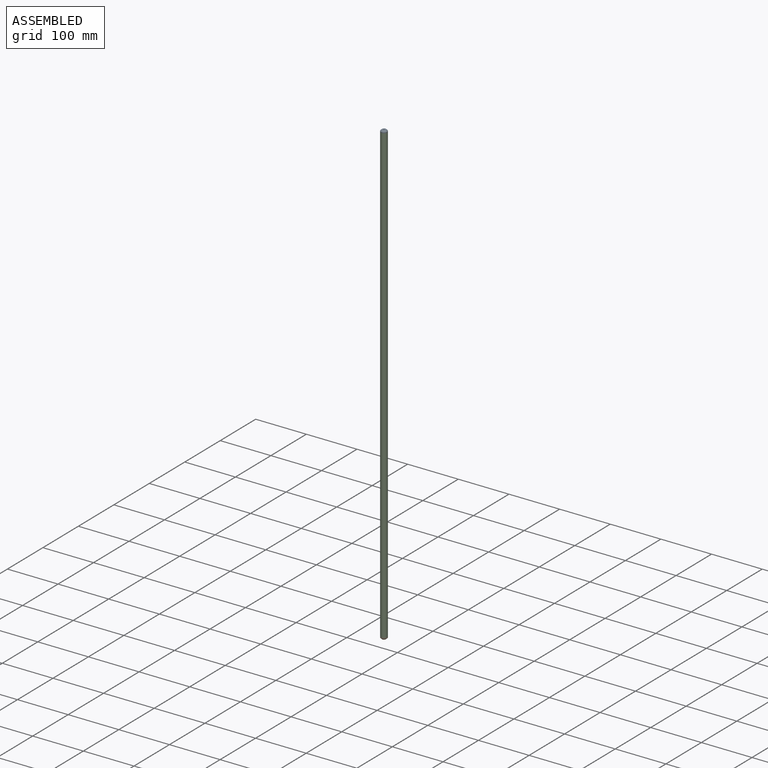
[diagram: assembled view]
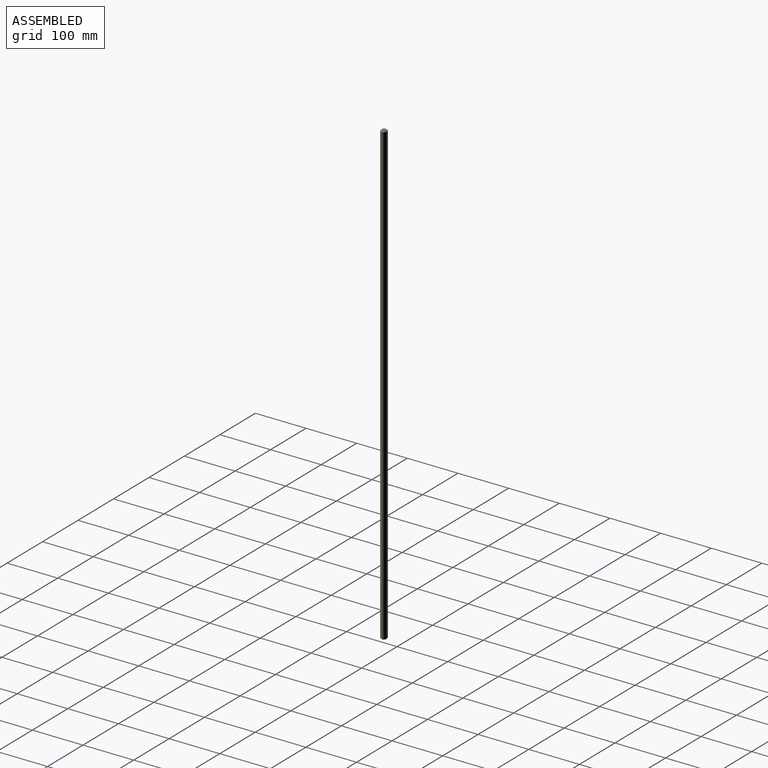
[diagram: assembled view, second angle]
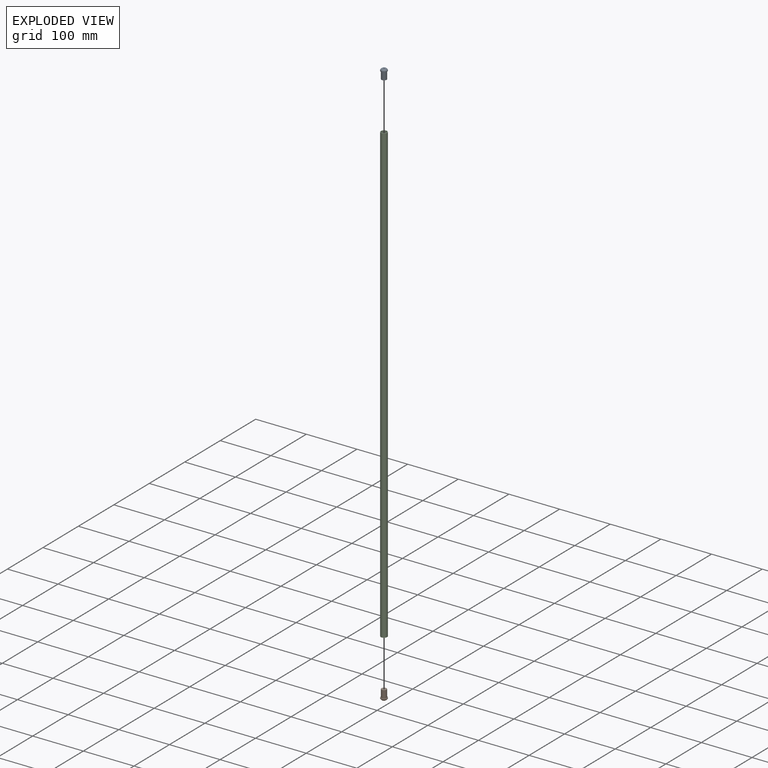
[diagram: exploded view]
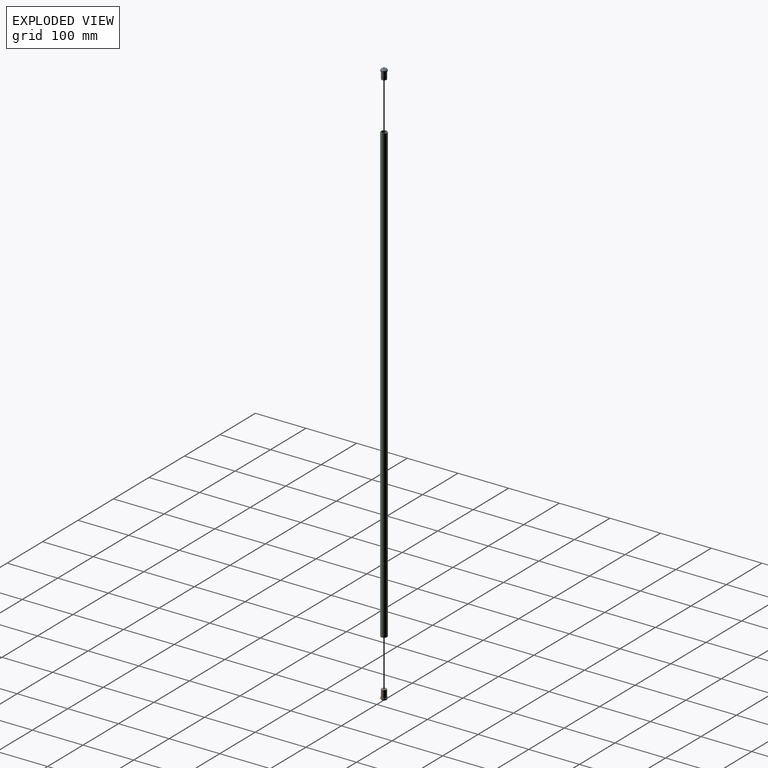
[diagram: exploded view, second angle]
ASSEMBLY  parts=3 mates=2
PART A: 7 faces, bbox 12.5x12.5x19.3 mm
  f0: cylinder r=5mm len=15mm, axis (0,0,1), area 471.2mm2, adj f1,f6
  f1: plane 12.5x12.5mm, normal (0,0,1), area 44.2mm2, adj f0,f2
  f2: cylinder r=6.25mm len=12.5mm, axis (0,0,1), area 78.5mm2, adj f1,f3
  f3: cone r=6.25mm half-angle=45deg, axis (0,0,1), area 102.5mm2, adj f2,f4
  f4: plane 8x8mm, normal (0,0,-1), area 45.4mm2, adj f3,f5
  f5: cylinder r=1.25mm len=19.25mm, axis (0,0,1), area 151.2mm2, adj f4,f6
  f6: plane 10x10mm, normal (0,0,1), area 73.6mm2, adj f0,f5
PART B: same geometry as A
PART C: 4 faces, bbox 12.5x12.5x900 mm
  f0: cylinder r=6.25mm len=900mm, axis (0,0,-1), area 35342.9mm2, adj f2,f3
  f1: cylinder r=5mm len=900mm, axis (0,0,-1), area 28274.3mm2, adj f2,f3
  f2: plane 12.5x12.5mm, normal (0,0,1), area 44.2mm2, adj f0,f1
  f3: plane 12.5x12.5mm, normal (0,0,-1), area 44.2mm2, adj f0,f1
PLACE A rot(axis=(1,0,0),180deg) t=(-397.59,15.93,910.75)mm
PLACE B t=(-397.59,15.93,-174.31)mm
PLACE C t=(-397.59,15.93,-174.31)mm
MATE fastened B.f0 <-> C.f0  axis (0,0,1) through (-397.59,15.93,-81.78)mm
MATE fastened A.f0 <-> C.f0  axis (0,0,-1) through (-397.59,15.93,818.22)mm
